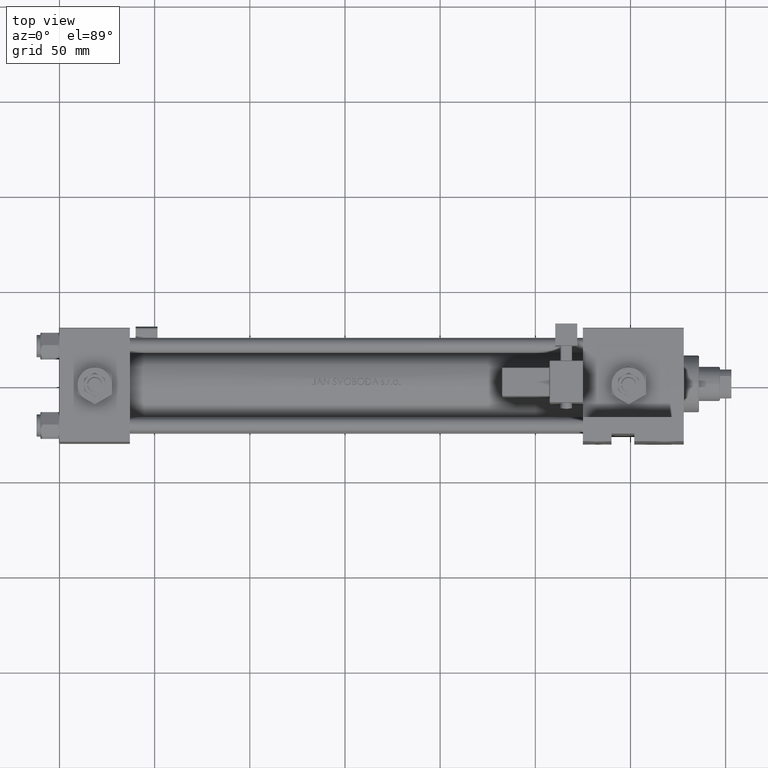
[diagram: clean part render]
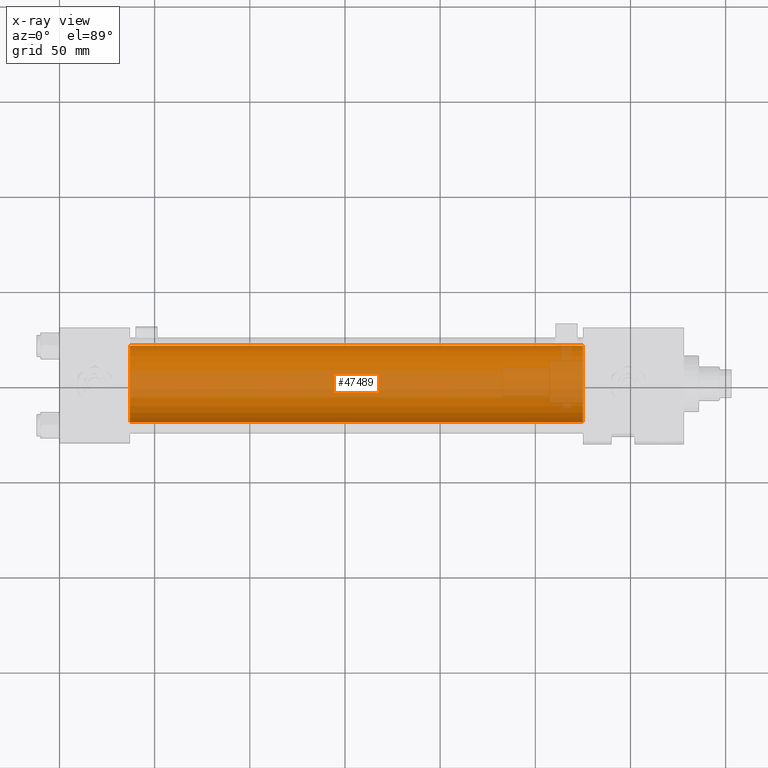
[diagram: x-ray — body ghosted, one internal face saturated and labeled with its STEP entity id]
A machine part, top view, then the same camera in x-ray: the body is ghosted and one INTERNAL B-rep face — a face not visible from any outside direction — is saturated and labeled: STEP entity #47489.
In plain terms, the highlighted cylindrical surface (partial cylindrical patch) has radius 20 mm, axis along (-1, -0, 0).
Its self-contained STEP definition (entity closure, byte-faithful):
#130 = EDGE_LOOP ( 'NONE', ( #25231, #18141, #9485, #11099 ) ) ;
#675 = CARTESIAN_POINT ( 'NONE',  ( 274.9999999999999432, 2.326828918379970970E-15, -19.00000000000000000 ) ) ;
#2159 = DIRECTION ( 'NONE',  ( -1.000000000000000000, -0.000000000000000000, -0.000000000000000000 ) ) ;
#6601 = LINE ( 'NONE', #39284, #50166 ) ;
#6863 = DIRECTION ( 'NONE',  ( -1.000000000000000000, -0.000000000000000000, -0.000000000000000000 ) ) ;
#9485 = ORIENTED_EDGE ( 'NONE', *, *, #25100, .T. ) ;
#10132 = FACE_OUTER_BOUND ( 'NONE', #130, .T. ) ;
#11099 = ORIENTED_EDGE ( 'NONE', *, *, #48908, .F. ) ;
#12291 = CIRCLE ( 'NONE', #21750, 20.00000000000000000 ) ;
#14860 = CIRCLE ( 'NONE', #51610, 20.00000000000000000 ) ;
#14980 = EDGE_CURVE ( 'NONE', #31211, #21029, #12291, .T. ) ;
#18141 = ORIENTED_EDGE ( 'NONE', *, *, #14980, .T. ) ;
#18455 = CARTESIAN_POINT ( 'NONE',  ( 274.9999999999999432, -1.224646799147354686E-16, 1.000000000000000888 ) ) ;
#18732 = DIRECTION ( 'NONE',  ( -1.000000000000000000, -0.000000000000000000, -0.000000000000000000 ) ) ;
#19158 = CARTESIAN_POINT ( 'NONE',  ( 37.00000000000000000, -1.224646799147354686E-16, 21.00000000000000000 ) ) ;
#21029 = VERTEX_POINT ( 'NONE', #51367 ) ;
#21750 = AXIS2_PLACEMENT_3D ( 'NONE', #49781, #29970, #50562 ) ;
#22464 = DIRECTION ( 'NONE',  ( 1.000000000000000000, 0.000000000000000000, 0.000000000000000000 ) ) ;
#25100 = EDGE_CURVE ( 'NONE', #21029, #31345, #34861, .T. ) ;
#25231 = ORIENTED_EDGE ( 'NONE', *, *, #39940, .F. ) ;
#25694 = AXIS2_PLACEMENT_3D ( 'NONE', #18455, #18732, #38771 ) ;
#26832 = VERTEX_POINT ( 'NONE', #36726 ) ;
#29970 = DIRECTION ( 'NONE',  ( 1.000000000000000000, 0.000000000000000000, 0.000000000000000000 ) ) ;
#31211 = VERTEX_POINT ( 'NONE', #675 ) ;
#31345 = VERTEX_POINT ( 'NONE', #19158 ) ;
#34861 = LINE ( 'NONE', #42873, #41436 ) ;
#36726 = CARTESIAN_POINT ( 'NONE',  ( 37.00000000000000000, 2.326828918379970970E-15, -19.00000000000000000 ) ) ;
#38771 = DIRECTION ( 'NONE',  ( 0.000000000000000000, 0.000000000000000000, 1.000000000000000000 ) ) ;
#39284 = CARTESIAN_POINT ( 'NONE',  ( 274.9999999999999432, 2.326828918379970970E-15, -19.00000000000000000 ) ) ;
#39940 = EDGE_CURVE ( 'NONE', #31211, #26832, #6601, .T. ) ;
#41436 = VECTOR ( 'NONE', #2159, 1000.000000000000000 ) ;
#42873 = CARTESIAN_POINT ( 'NONE',  ( 274.9999999999999432, -1.224646799147354686E-16, 21.00000000000000000 ) ) ;
#47489 = ADVANCED_FACE ( 'NONE', ( #10132 ), #50837, .F. ) ;
#48908 = EDGE_CURVE ( 'NONE', #26832, #31345, #14860, .T. ) ;
#49781 = CARTESIAN_POINT ( 'NONE',  ( 274.9999999999999432, -1.224646799147354686E-16, 1.000000000000000888 ) ) ;
#50166 = VECTOR ( 'NONE', #6863, 1000.000000000000000 ) ;
#50562 = DIRECTION ( 'NONE',  ( 0.000000000000000000, 0.000000000000000000, -1.000000000000000000 ) ) ;
#50831 = CARTESIAN_POINT ( 'NONE',  ( 37.00000000000000000, -1.224646799147354686E-16, 1.000000000000000888 ) ) ;
#50837 = CYLINDRICAL_SURFACE ( 'NONE', #25694, 20.00000000000000000 ) ;
#51097 = DIRECTION ( 'NONE',  ( 0.000000000000000000, 0.000000000000000000, -1.000000000000000000 ) ) ;
#51367 = CARTESIAN_POINT ( 'NONE',  ( 274.9999999999999432, -1.224646799147354686E-16, 21.00000000000000000 ) ) ;
#51610 = AXIS2_PLACEMENT_3D ( 'NONE', #50831, #22464, #51097 ) ;